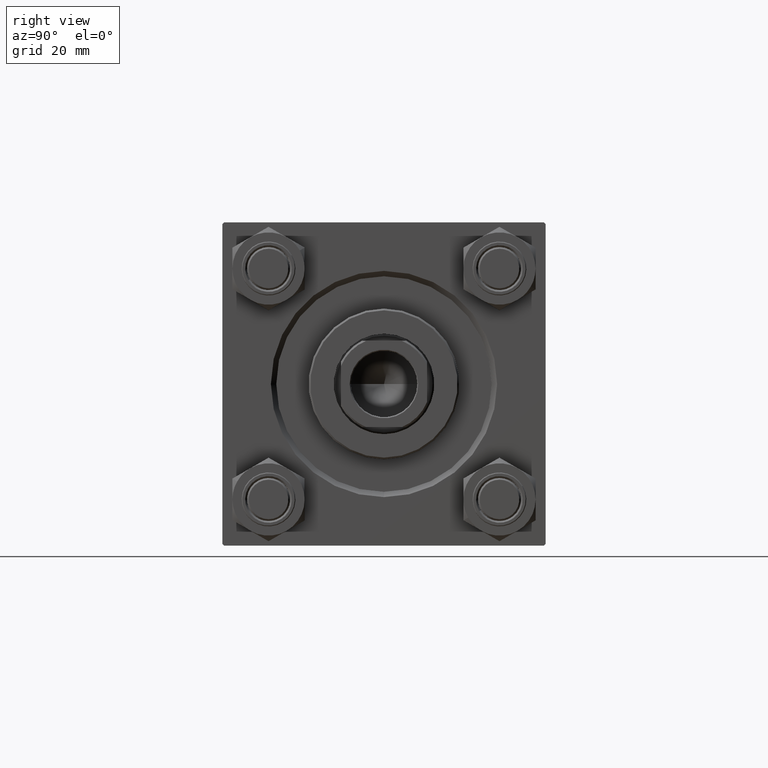
[diagram: clean part render]
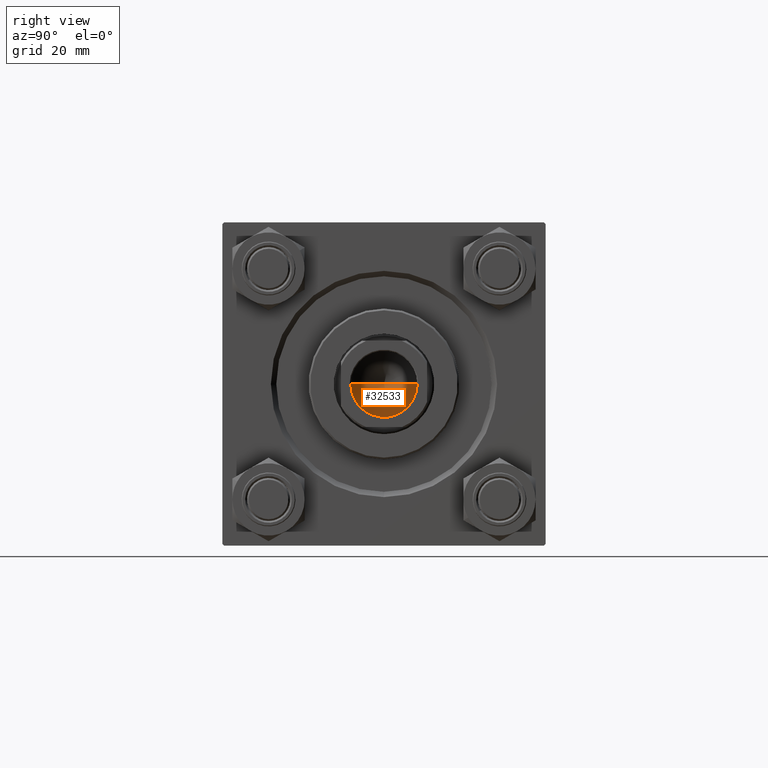
[diagram: same view with one face highlighted and labeled with its STEP entity id]
A machine part, right view. The second image highlights one B-rep face of the part: STEP entity #32533.
In plain terms, the highlighted conical surface has half-angle 59 deg.
Its self-contained STEP definition (entity closure, byte-faithful):
#2039 = LINE ( 'NONE', #33988, #41560 ) ;
#2158 = CARTESIAN_POINT ( 'NONE',  ( 0.000000000000000000, 0.000000000000000000, 77.99999999999998579 ) ) ;
#6313 = EDGE_CURVE ( 'NONE', #19532, #21935, #2039, .T. ) ;
#7274 = DIRECTION ( 'NONE',  ( 0.8571673007021117785, 0.000000000000000000, 0.5150380749100550437 ) ) ;
#7983 = CIRCLE ( 'NONE', #36146, 9.249999999999992895 ) ;
#9517 = FACE_OUTER_BOUND ( 'NONE', #22493, .T. ) ;
#10001 = DIRECTION ( 'NONE',  ( -0.000000000000000000, -0.000000000000000000, 1.000000000000000000 ) ) ;
#11653 = EDGE_CURVE ( 'NONE', #24897, #21935, #7983, .T. ) ;
#13635 = ORIENTED_EDGE ( 'NONE', *, *, #11653, .T. ) ;
#16049 = AXIS2_PLACEMENT_3D ( 'NONE', #25148, #10001, #32953 ) ;
#19124 = CARTESIAN_POINT ( 'NONE',  ( -9.249999999999992895, 1.132798289211300712E-15, 77.99999999999998579 ) ) ;
#19532 = VERTEX_POINT ( 'NONE', #28016 ) ;
#21935 = VERTEX_POINT ( 'NONE', #19124 ) ;
#22468 = EDGE_CURVE ( 'NONE', #19532, #24897, #27431, .T. ) ;
#22493 = EDGE_LOOP ( 'NONE', ( #29334, #26470, #13635 ) ) ;
#24897 = VERTEX_POINT ( 'NONE', #42052 ) ;
#25148 = CARTESIAN_POINT ( 'NONE',  ( 0.000000000000000000, 0.000000000000000000, 77.99999999999998579 ) ) ;
#26470 = ORIENTED_EDGE ( 'NONE', *, *, #22468, .T. ) ;
#27431 = LINE ( 'NONE', #42250, #31935 ) ;
#28016 = CARTESIAN_POINT ( 'NONE',  ( -9.769621978240258809E-15, 0.000000000000000000, 72.44203927399505005 ) ) ;
#29334 = ORIENTED_EDGE ( 'NONE', *, *, #6313, .F. ) ;
#29611 = DIRECTION ( 'NONE',  ( -0.000000000000000000, -0.000000000000000000, 1.000000000000000000 ) ) ;
#31351 = CONICAL_SURFACE ( 'NONE', #16049, 9.249999999999992895, 1.029744258676653423 ) ;
#31935 = VECTOR ( 'NONE', #7274, 1000.000000000000000 ) ;
#32533 = ADVANCED_FACE ( 'NONE', ( #9517 ), #31351, .F. ) ;
#32953 = DIRECTION ( 'NONE',  ( 1.000000000000000000, 0.000000000000000000, 0.000000000000000000 ) ) ;
#33495 = DIRECTION ( 'NONE',  ( -0.8571673007021117785, 1.049727191138617956E-16, 0.5150380749100550437 ) ) ;
#33988 = CARTESIAN_POINT ( 'NONE',  ( -9.249999999999992895, 1.132798289211300712E-15, 77.99999999999998579 ) ) ;
#36146 = AXIS2_PLACEMENT_3D ( 'NONE', #2158, #29611, #44923 ) ;
#41560 = VECTOR ( 'NONE', #33495, 1000.000000000000000 ) ;
#42052 = CARTESIAN_POINT ( 'NONE',  ( 9.249999999999992895, 0.000000000000000000, 77.99999999999998579 ) ) ;
#42250 = CARTESIAN_POINT ( 'NONE',  ( 9.249999999999992895, 0.000000000000000000, 77.99999999999998579 ) ) ;
#44923 = DIRECTION ( 'NONE',  ( 1.000000000000000000, 0.000000000000000000, 0.000000000000000000 ) ) ;